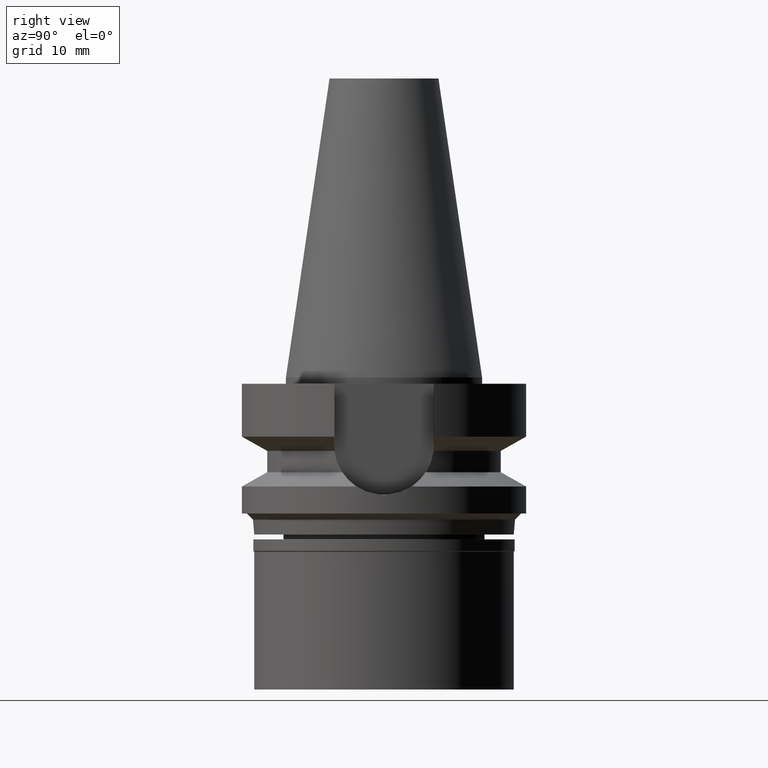
[diagram: clean part render]
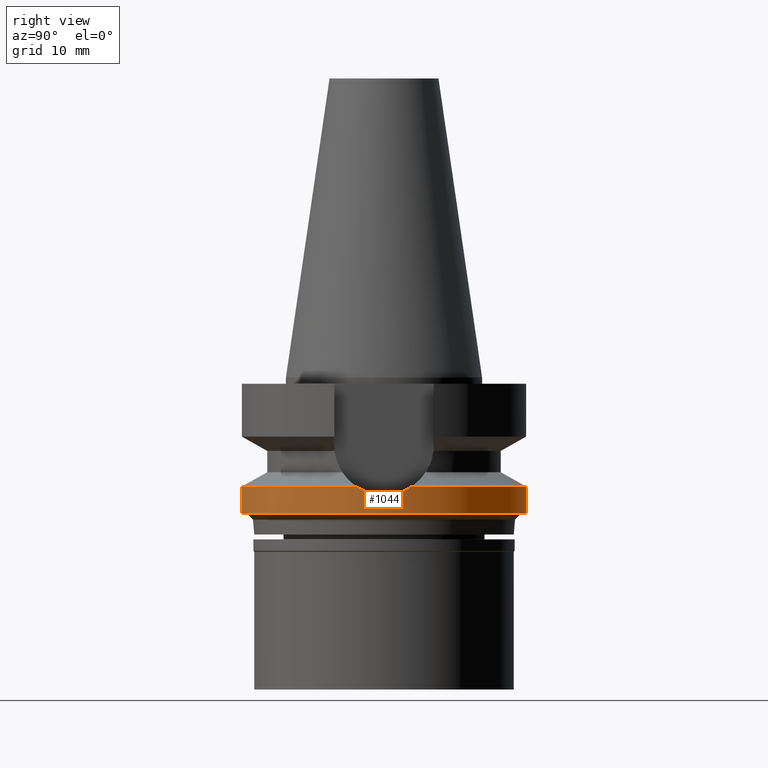
[diagram: same view with one face highlighted and labeled with its STEP entity id]
A machine part, right view. The second image highlights one B-rep face of the part: STEP entity #1044.
In plain terms, the highlighted cylindrical surface (partial cylindrical patch) has radius 23 mm, axis along (0, 0, -1).
Its self-contained STEP definition (entity closure, byte-faithful):
#9 = CARTESIAN_POINT ( 'NONE',  ( 0.0000000000000000000, 1.022848384030000006E-14, -17.63279163029000074 ) ) ;
#62 = CARTESIAN_POINT ( 'NONE',  ( 22.99017900442718698, 0.7692408450539119924, -18.97279037030229176 ) ) ;
#75 = CARTESIAN_POINT ( 'NONE',  ( 23.00000000000000000, 0.0000000000000000000, -19.00000000000000000 ) ) ;
#95 = EDGE_LOOP ( 'NONE', ( #798, #1069, #1597, #994, #474, #2956, #2307 ) ) ;
#98 = CARTESIAN_POINT ( 'NONE',  ( 0.0000000000000000000, 23.00000000000000000, -17.63279163029000074 ) ) ;
#99 = EDGE_CURVE ( 'NONE', #420, #2403, #2638, .T. ) ;
#209 = AXIS2_PLACEMENT_3D ( 'NONE', #2361, #219, #2823 ) ;
#219 = DIRECTION ( 'NONE',  ( 0.0000000000000000000, 0.0000000000000000000, -1.000000000000000000 ) ) ;
#269 = CARTESIAN_POINT ( 'NONE',  ( 22.94843977324273254, 1.547277415373548459, -18.85241304763131254 ) ) ;
#275 = CARTESIAN_POINT ( 'NONE',  ( 22.86645584089566086, -2.474114014963596286, -18.61060269316682891 ) ) ;
#299 = CARTESIAN_POINT ( 'NONE',  ( 22.91437319484953861, 1.984872177471960653, -18.75259021078776911 ) ) ;
#420 = VERTEX_POINT ( 'NONE', #1310 ) ;
#447 = FACE_OUTER_BOUND ( 'NONE', #95, .T. ) ;
#474 = ORIENTED_EDGE ( 'NONE', *, *, #1650, .T. ) ;
#532 = VERTEX_POINT ( 'NONE', #98 ) ;
#547 = CARTESIAN_POINT ( 'NONE',  ( 0.0000000000000000000, 23.00000000000000000, -22.00000000000000000 ) ) ;
#551 = CARTESIAN_POINT ( 'NONE',  ( 22.80071983134484626, -3.022894333763932018, -18.41327131636458958 ) ) ;
#651 = DIRECTION ( 'NONE',  ( 0.0000000000000000000, -1.000000000000000000, 0.0000000000000000000 ) ) ;
#677 = CARTESIAN_POINT ( 'NONE',  ( 0.0000000000000000000, -23.00000000000000000, -17.63279163029000074 ) ) ;
#721 = CARTESIAN_POINT ( 'NONE',  ( 22.55786346208000026, -4.488072640470000430, -17.63279163029000074 ) ) ;
#754 = CARTESIAN_POINT ( 'NONE',  ( 22.87776775430497622, -2.366779636863180603, -18.64421725440575628 ) ) ;
#768 = EDGE_CURVE ( 'NONE', #2277, #2989, #2784, .T. ) ;
#782 = CARTESIAN_POINT ( 'NONE',  ( 22.88091904273530020, -2.336145516863901594, -18.65357602331868492 ) ) ;
#798 = ORIENTED_EDGE ( 'NONE', *, *, #768, .T. ) ;
#861 = B_SPLINE_CURVE_WITH_KNOTS ( 'NONE', 3,
 ( #2703, #1524, #1500, #2458, #551, #2422, #2660, #275, #1227, #754, #2690, #782, #1732, #2440, #75 ),
 .UNSPECIFIED., .F., .F.,
 ( 4, 2, 2, 1, 1, 1, 2, 2, 4 ),
 ( 0.0000000000000000000, 0.2499999999999884537, 0.3749999999999833467, 0.4374999999999809597, 0.4687499999999799050, 0.4843749999999796274, 0.4921874999999799605, 0.4999999999999803491, 1.000000000000000000 ),
 .UNSPECIFIED. ) ;
#881 = DIRECTION ( 'NONE',  ( 0.0000000000000000000, 0.0000000000000000000, 1.000000000000000000 ) ) ;
#925 = LINE ( 'NONE', #677, #1802 ) ;
#944 = CARTESIAN_POINT ( 'NONE',  ( 22.89879770968327577, 2.154616895203881111, -18.70658184095925591 ) ) ;
#994 = ORIENTED_EDGE ( 'NONE', *, *, #2668, .F. ) ;
#1000 = CARTESIAN_POINT ( 'NONE',  ( 22.92634253320390769, 1.839067920807084366, -18.78774546834311465 ) ) ;
#1044 = ADVANCED_FACE ( 'NONE', ( #447 ), #1425, .T. ) ;
#1069 = ORIENTED_EDGE ( 'NONE', *, *, #1390, .T. ) ;
#1088 = EDGE_CURVE ( 'NONE', #2930, #1128, #1606, .T. ) ;
#1128 = VERTEX_POINT ( 'NONE', #1849 ) ;
#1218 = CARTESIAN_POINT ( 'NONE',  ( 0.0000000000000000000, 23.00000000000000000, -17.63279163029000074 ) ) ;
#1227 = CARTESIAN_POINT ( 'NONE',  ( 22.87443384136348001, -2.398894200851944714, -18.63431437757438758 ) ) ;
#1298 = AXIS2_PLACEMENT_3D ( 'NONE', #2559, #881, #651 ) ;
#1310 = CARTESIAN_POINT ( 'NONE',  ( 0.0000000000000000000, -23.00000000000000000, -22.00000000000000000 ) ) ;
#1384 = CARTESIAN_POINT ( 'NONE',  ( 22.88323084488150627, 2.313379985516223591, -18.66044078351198010 ) ) ;
#1390 = EDGE_CURVE ( 'NONE', #2989, #420, #925, .T. ) ;
#1425 = CYLINDRICAL_SURFACE ( 'NONE', #209, 23.00000000000000000 ) ;
#1500 = CARTESIAN_POINT ( 'NONE',  ( 22.69504974818498866, -3.747834999844367410, -18.08559069547905906 ) ) ;
#1524 = CARTESIAN_POINT ( 'NONE',  ( 22.63130525173943397, -4.118940944923022762, -17.88069549369956590 ) ) ;
#1557 = CIRCLE ( 'NONE', #2044, 23.00000000000000000 ) ;
#1597 = ORIENTED_EDGE ( 'NONE', *, *, #99, .T. ) ;
#1606 = B_SPLINE_CURVE_WITH_KNOTS ( 'NONE', 3,
 ( #1728, #2200, #62, #2174, #269, #1000, #299, #944, #1689, #2610, #2331, #1384, #2121, #3050, #2789 ),
 .UNSPECIFIED., .F., .F.,
 ( 4, 2, 2, 1, 1, 1, 2, 2, 4 ),
 ( 0.0000000000000000000, 0.2500000000000008882, 0.3750000000000013323, 0.4375000000000012212, 0.4687500000000011102, 0.4843750000000007772, 0.4921875000000004996, 0.5000000000000002220, 1.000000000000000000 ),
 .UNSPECIFIED. ) ;
#1650 = EDGE_CURVE ( 'NONE', #532, #1128, #1557, .T. ) ;
#1654 = DIRECTION ( 'NONE',  ( 0.0000000000000000000, 0.0000000000000000000, -1.000000000000000000 ) ) ;
#1682 = AXIS2_PLACEMENT_3D ( 'NONE', #9, #1907, #2592 ) ;
#1689 = CARTESIAN_POINT ( 'NONE',  ( 22.89060715282861480, 2.239373402882506525, -18.68232301738858325 ) ) ;
#1728 = CARTESIAN_POINT ( 'NONE',  ( 23.00000000000000000, 0.0000000000000000000, -19.00000000000000000 ) ) ;
#1732 = CARTESIAN_POINT ( 'NONE',  ( 22.96071556049000151, -1.550383899028001666, -18.89051676089442111 ) ) ;
#1802 = VECTOR ( 'NONE', #2123, 1000.000000000000000 ) ;
#1849 = CARTESIAN_POINT ( 'NONE',  ( 22.55786346208000026, 4.488072640470000430, -17.63279163029000074 ) ) ;
#1907 = DIRECTION ( 'NONE',  ( 0.0000000000000000000, 0.0000000000000000000, -1.000000000000000000 ) ) ;
#1925 = CARTESIAN_POINT ( 'NONE',  ( 0.0000000000000000000, 1.022848384030000006E-14, -17.63279163029000074 ) ) ;
#1962 = EDGE_CURVE ( 'NONE', #2277, #2930, #861, .T. ) ;
#2044 = AXIS2_PLACEMENT_3D ( 'NONE', #1925, #1654, #2367 ) ;
#2121 = CARTESIAN_POINT ( 'NONE',  ( 22.81284938078990621, 3.006462468931886622, -18.45144815082640122 ) ) ;
#2123 = DIRECTION ( 'NONE',  ( 0.0000000000000000000, 2.277793377031000010E-14, -1.000000000000000000 ) ) ;
#2174 = CARTESIAN_POINT ( 'NONE',  ( 22.96071601770875148, 1.352510162077560363, -18.88799820246613237 ) ) ;
#2200 = CARTESIAN_POINT ( 'NONE',  ( 23.00000000000000355, 0.3818126747197829185, -19.00000000000000711 ) ) ;
#2277 = VERTEX_POINT ( 'NONE', #721 ) ;
#2307 = ORIENTED_EDGE ( 'NONE', *, *, #1962, .F. ) ;
#2331 = CARTESIAN_POINT ( 'NONE',  ( 22.88459371120346475, 2.299861316234002029, -18.66448618415901350 ) ) ;
#2342 = LINE ( 'NONE', #1218, #2821 ) ;
#2361 = CARTESIAN_POINT ( 'NONE',  ( 0.0000000000000000000, 1.873342208656000186E-14, 52.97000000000000597 ) ) ;
#2367 = DIRECTION ( 'NONE',  ( 0.0000000000000000000, 1.000000000000000000, 0.0000000000000000000 ) ) ;
#2403 = VERTEX_POINT ( 'NONE', #547 ) ;
#2422 = CARTESIAN_POINT ( 'NONE',  ( 22.83398226385818930, -2.757375331331775037, -18.51361907461343748 ) ) ;
#2440 = CARTESIAN_POINT ( 'NONE',  ( 22.99999999999999645, -0.7636620631085587751, -19.00000000000000355 ) ) ;
#2458 = CARTESIAN_POINT ( 'NONE',  ( 22.77612055303248439, -3.202721751908400361, -18.33817831537106713 ) ) ;
#2559 = CARTESIAN_POINT ( 'NONE',  ( 0.0000000000000000000, 1.873342208656000186E-14, -22.00000000000000000 ) ) ;
#2592 = DIRECTION ( 'NONE',  ( 0.9807766722643714852, -0.1951335930638943839, 0.0000000000000000000 ) ) ;
#2610 = CARTESIAN_POINT ( 'NONE',  ( 22.88701059683271311, 2.275670017514245025, -18.67165689025851094 ) ) ;
#2622 = DIRECTION ( 'NONE',  ( 0.0000000000000000000, -2.603192430893000129E-14, -1.000000000000000000 ) ) ;
#2638 = CIRCLE ( 'NONE', #1298, 23.00000000000000000 ) ;
#2660 = CARTESIAN_POINT ( 'NONE',  ( 22.84970435887604268, -2.625667283271014618, -18.56072099275233356 ) ) ;
#2668 = EDGE_CURVE ( 'NONE', #532, #2403, #2342, .T. ) ;
#2690 = CARTESIAN_POINT ( 'NONE',  ( 22.87997142290684849, -2.345397495175265412, -18.65076201405361545 ) ) ;
#2703 = CARTESIAN_POINT ( 'NONE',  ( 22.55786346208000026, -4.488072640470000430, -17.63279163029000074 ) ) ;
#2774 = CARTESIAN_POINT ( 'NONE',  ( 23.00000000000000000, 0.0000000000000000000, -19.00000000000000000 ) ) ;
#2784 = CIRCLE ( 'NONE', #1682, 23.00000000000001066 ) ;
#2789 = CARTESIAN_POINT ( 'NONE',  ( 22.55786346208000026, 4.488072640470000430, -17.63279163029000074 ) ) ;
#2821 = VECTOR ( 'NONE', #2622, 1000.000000000000000 ) ;
#2823 = DIRECTION ( 'NONE',  ( 0.0000000000000000000, -1.000000000000000000, 0.0000000000000000000 ) ) ;
#2860 = CARTESIAN_POINT ( 'NONE',  ( 0.0000000000000000000, -23.00000000000000000, -17.63279163029000074 ) ) ;
#2930 = VERTEX_POINT ( 'NONE', #2774 ) ;
#2956 = ORIENTED_EDGE ( 'NONE', *, *, #1088, .F. ) ;
#2989 = VERTEX_POINT ( 'NONE', #2860 ) ;
#3050 = CARTESIAN_POINT ( 'NONE',  ( 22.70475451710780845, 3.749771675105681989, -18.12862459148254857 ) ) ;